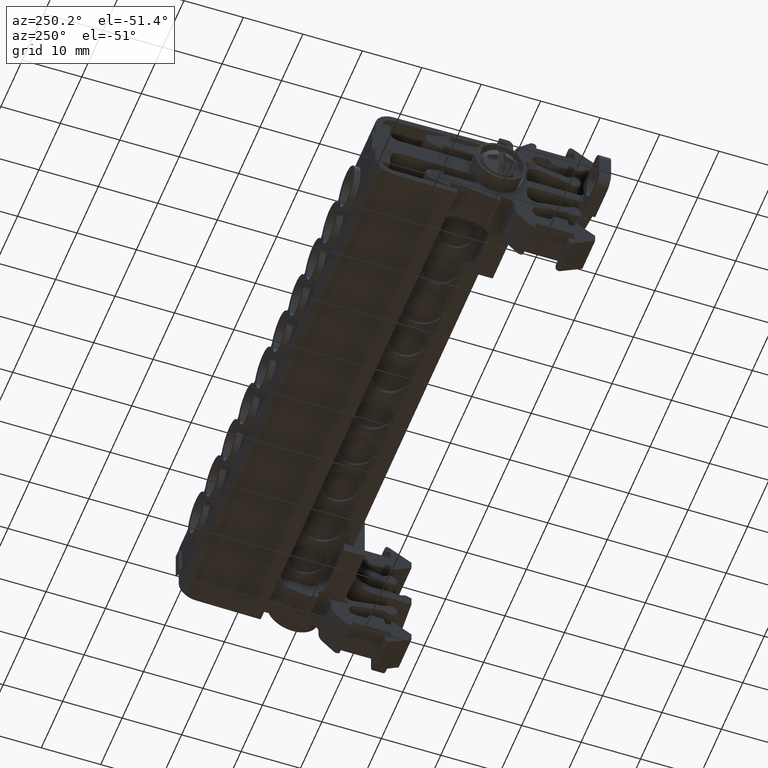
[diagram: clean part render]
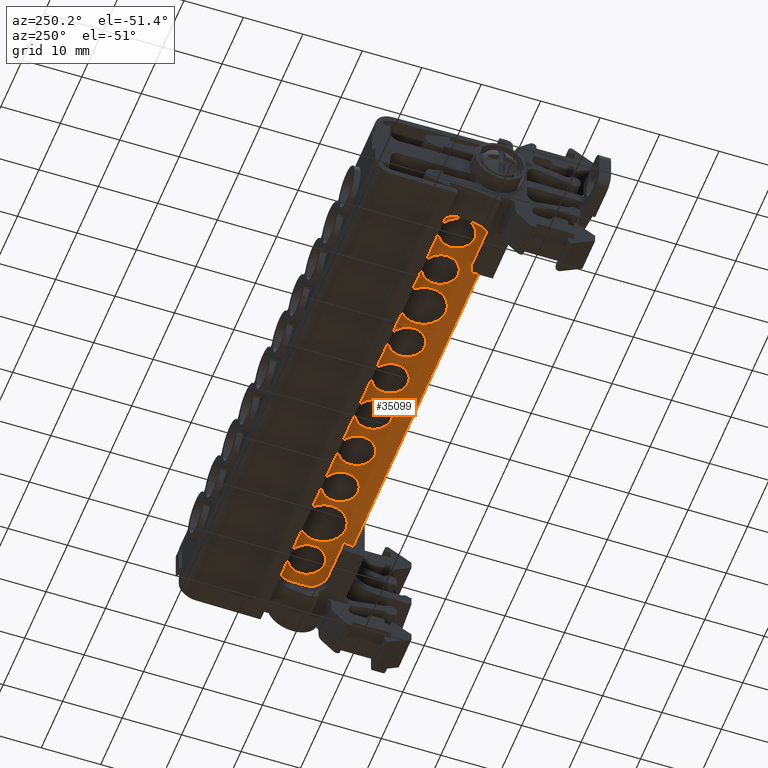
[diagram: same view with one face highlighted and labeled with its STEP entity id]
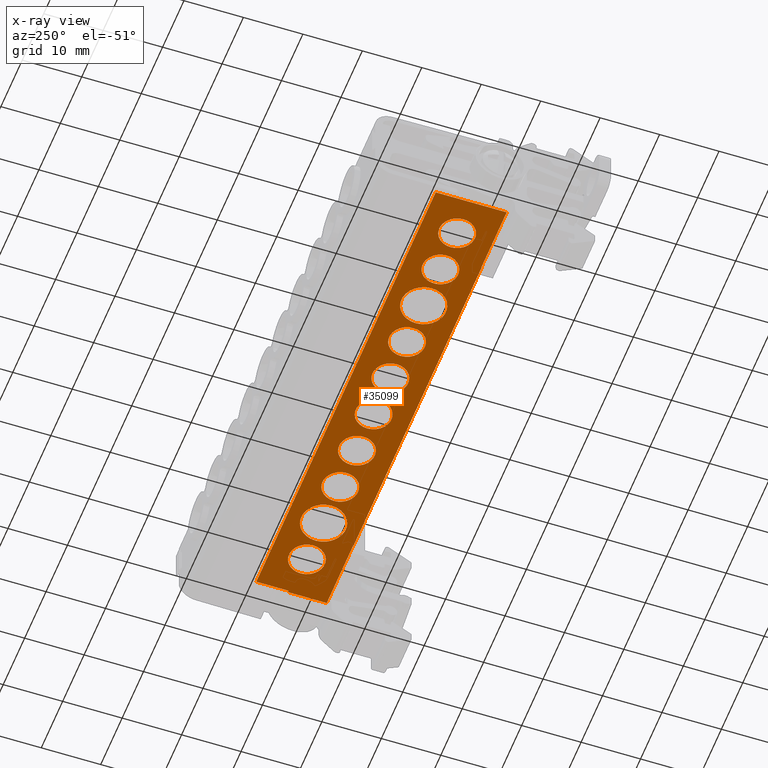
[diagram: x-ray of the same camera — body ghosted, the highlighted face saturated]
A machine part, auxiliary view. The second image highlights one B-rep face of the part: STEP entity #35099.
The next image is the same camera in x-ray: the body ghosted, the highlighted face saturated — about 0% of this face is hidden behind the body in this view.
In plain terms, the highlighted planar face has unit normal (0, 0, -1).
Its self-contained STEP definition (entity closure, byte-faithful):
#668 = CARTESIAN_POINT ( 'NONE',  ( -20.85539649368645200, -39.46391012921720400, 92.75723811290791300 ) ) ;
#693 = CARTESIAN_POINT ( 'NONE',  ( -13.80539649368645900, -39.46391012921720400, 92.75723811290791300 ) ) ;
#695 = CARTESIAN_POINT ( 'NONE',  ( -28.65539649368645300, -39.46391012921721100, 92.75723811290791300 ) ) ;
#700 = CARTESIAN_POINT ( 'NONE',  ( -53.10539649368644900, -39.46391012921720400, 92.75723811290791300 ) ) ;
#703 = CARTESIAN_POINT ( 'NONE',  ( -22.65539649368644600, -39.46391012921721100, 92.75723811290791300 ) ) ;
#708 = CARTESIAN_POINT ( 'NONE',  ( -46.05539649368644500, -39.46391012921721100, 92.75723811290791300 ) ) ;
#717 = CARTESIAN_POINT ( 'NONE',  ( -52.05539649368645200, -39.46391012921721100, 92.75723811290791300 ) ) ;
#726 = CARTESIAN_POINT ( 'NONE',  ( -36.45539649368645000, -39.46391012921721100, 92.75723811290791300 ) ) ;
#727 = CARTESIAN_POINT ( 'NONE',  ( -6.305396493686445500, -39.46391012921720400, 92.75723811290791300 ) ) ;
#730 = CARTESIAN_POINT ( 'NONE',  ( -5.255396493686452800, -39.46391012921720400, 92.75723811290791300 ) ) ;
#735 = CARTESIAN_POINT ( 'NONE',  ( -14.85539649368644700, -39.46391012921720400, 92.75723811290791300 ) ) ;
#736 = CARTESIAN_POINT ( 'NONE',  ( -38.25539649368644000, -39.46391012921721100, 92.75723811290791300 ) ) ;
#740 = CARTESIAN_POINT ( 'NONE',  ( -69.45539649368645000, -39.46391012921720400, 92.75723811290791300 ) ) ;
#744 = CARTESIAN_POINT ( 'NONE',  ( -75.45539649368646500, -39.46391012921720400, 92.75723811290791300 ) ) ;
#749 = CARTESIAN_POINT ( 'NONE',  ( 0.7446035063135504300, -39.46391012921720400, 92.75723811290791300 ) ) ;
#760 = CARTESIAN_POINT ( 'NONE',  ( -30.45539649368645000, -39.46391012921721100, 92.75723811290791300 ) ) ;
#767 = CARTESIAN_POINT ( 'NONE',  ( -60.60539649368644200, -39.46391012921720400, 92.75723811290791300 ) ) ;
#771 = CARTESIAN_POINT ( 'NONE',  ( -44.25539649368644700, -39.46391012921721100, 92.75723811290791300 ) ) ;
#779 = CARTESIAN_POINT ( 'NONE',  ( -67.65539649368642500, -39.46391012921720400, 92.75723811290791300 ) ) ;
#802 = CARTESIAN_POINT ( 'NONE',  ( -61.65539649368644600, -39.46391012921720400, 92.75723811290791300 ) ) ;
#1895 = CARTESIAN_POINT ( 'NONE',  ( -10.05539649368645200, -39.46391012921720400, 92.75723811290791300 ) ) ;
#1908 = DIRECTION ( 'NONE',  ( 0.0000000000000000000, 0.0000000000000000000, 1.000000000000000000 ) ) ;
#1910 = DIRECTION ( 'NONE',  ( 0.0000000000000000000, 0.0000000000000000000, 1.000000000000000000 ) ) ;
#1912 = DIRECTION ( 'NONE',  ( 0.0000000000000000000, 0.0000000000000000000, 1.000000000000000000 ) ) ;
#1920 = CARTESIAN_POINT ( 'NONE',  ( -2.255396493686451000, -39.46391012921720400, 92.75723811290791300 ) ) ;
#1921 = DIRECTION ( 'NONE',  ( 1.000000000000000000, 0.0000000000000000000, 0.0000000000000000000 ) ) ;
#1923 = DIRECTION ( 'NONE',  ( 1.000000000000000000, 0.0000000000000000000, 0.0000000000000000000 ) ) ;
#1928 = CARTESIAN_POINT ( 'NONE',  ( -64.65539649368643900, -39.46391012921720400, 92.75723811290791300 ) ) ;
#1929 = DIRECTION ( 'NONE',  ( 1.000000000000000000, 0.0000000000000000000, 0.0000000000000000000 ) ) ;
#1930 = CARTESIAN_POINT ( 'NONE',  ( -56.85539649368644900, -39.46391012921720400, 92.75723811290791300 ) ) ;
#1931 = DIRECTION ( 'NONE',  ( 0.0000000000000000000, 0.0000000000000000000, 1.000000000000000000 ) ) ;
#1932 = DIRECTION ( 'NONE',  ( 1.000000000000000000, 0.0000000000000000000, 0.0000000000000000000 ) ) ;
#1973 = CARTESIAN_POINT ( 'NONE',  ( -17.85539649368644900, -39.46391012921720400, 92.75723811290791300 ) ) ;
#1978 = DIRECTION ( 'NONE',  ( 0.0000000000000000000, 0.0000000000000000000, 1.000000000000000000 ) ) ;
#1979 = DIRECTION ( 'NONE',  ( 1.000000000000000000, 0.0000000000000000000, 0.0000000000000000000 ) ) ;
#2600 = AXIS2_PLACEMENT_3D ( 'NONE', #27583, #27584, #27592 ) ;
#2611 = CIRCLE ( 'NONE', #2600, 3.000000000000002700 ) ;
#2648 = AXIS2_PLACEMENT_3D ( 'NONE', #26022, #25973, #25997 ) ;
#2653 = CIRCLE ( 'NONE', #2648, 3.000000000000002700 ) ;
#6945 = VERTEX_POINT ( 'NONE', #668 ) ;
#7056 = VERTEX_POINT ( 'NONE', #708 ) ;
#7069 = VERTEX_POINT ( 'NONE', #695 ) ;
#7073 = VERTEX_POINT ( 'NONE', #693 ) ;
#7074 = VERTEX_POINT ( 'NONE', #700 ) ;
#7079 = VERTEX_POINT ( 'NONE', #749 ) ;
#7083 = VERTEX_POINT ( 'NONE', #740 ) ;
#7084 = VERTEX_POINT ( 'NONE', #703 ) ;
#7086 = VERTEX_POINT ( 'NONE', #717 ) ;
#7094 = VERTEX_POINT ( 'NONE', #726 ) ;
#7095 = VERTEX_POINT ( 'NONE', #727 ) ;
#7099 = VERTEX_POINT ( 'NONE', #744 ) ;
#7100 = VERTEX_POINT ( 'NONE', #730 ) ;
#7104 = VERTEX_POINT ( 'NONE', #735 ) ;
#7106 = VERTEX_POINT ( 'NONE', #736 ) ;
#7113 = VERTEX_POINT ( 'NONE', #767 ) ;
#7115 = VERTEX_POINT ( 'NONE', #802 ) ;
#7116 = VERTEX_POINT ( 'NONE', #771 ) ;
#7118 = VERTEX_POINT ( 'NONE', #779 ) ;
#7138 = VERTEX_POINT ( 'NONE', #760 ) ;
#8506 = EDGE_CURVE ( 'NONE', #7073, #7095, #14620, .T. ) ;
#8510 = EDGE_CURVE ( 'NONE', #7100, #7079, #14665, .T. ) ;
#8515 = EDGE_CURVE ( 'NONE', #7118, #7115, #14680, .T. ) ;
#8518 = EDGE_CURVE ( 'NONE', #7113, #7074, #14644, .T. ) ;
#8524 = EDGE_CURVE ( 'NONE', #6945, #7104, #14657, .T. ) ;
#10298 = AXIS2_PLACEMENT_3D ( 'NONE', #11037, #11061, #11083 ) ;
#11037 = CARTESIAN_POINT ( 'NONE',  ( -79.10539649368644200, -33.46391012921720400, 92.75723811290791300 ) ) ;
#11043 = FACE_OUTER_BOUND ( 'NONE', #20290, .T. ) ;
#11046 = FACE_BOUND ( 'NONE', #20275, .T. ) ;
#11058 = FACE_BOUND ( 'NONE', #20280, .T. ) ;
#11059 = PLANE ( 'NONE',  #10298 ) ;
#11060 = FACE_BOUND ( 'NONE', #20276, .T. ) ;
#11061 = DIRECTION ( 'NONE',  ( 0.0000000000000000000, 0.0000000000000000000, -1.000000000000000000 ) ) ;
#11064 = FACE_BOUND ( 'NONE', #20286, .T. ) ;
#11069 = FACE_BOUND ( 'NONE', #20287, .T. ) ;
#11080 = FACE_BOUND ( 'NONE', #20305, .T. ) ;
#11083 = DIRECTION ( 'NONE',  ( -1.000000000000000000, 0.0000000000000000000, -0.0000000000000000000 ) ) ;
#11084 = FACE_BOUND ( 'NONE', #20281, .T. ) ;
#11085 = FACE_BOUND ( 'NONE', #20282, .T. ) ;
#14620 = CIRCLE ( 'NONE', #14656, 3.750000000000006700 ) ;
#14634 = AXIS2_PLACEMENT_3D ( 'NONE', #1920, #1912, #1929 ) ;
#14644 = CIRCLE ( 'NONE', #14667, 3.749999999999996400 ) ;
#14656 = AXIS2_PLACEMENT_3D ( 'NONE', #1895, #1910, #1921 ) ;
#14657 = CIRCLE ( 'NONE', #14685, 3.000000000000000900 ) ;
#14665 = CIRCLE ( 'NONE', #14634, 3.000000000000001300 ) ;
#14666 = AXIS2_PLACEMENT_3D ( 'NONE', #1928, #1908, #1923 ) ;
#14667 = AXIS2_PLACEMENT_3D ( 'NONE', #1930, #1931, #1932 ) ;
#14680 = CIRCLE ( 'NONE', #14666, 2.999999999999995600 ) ;
#14685 = AXIS2_PLACEMENT_3D ( 'NONE', #1973, #1978, #1979 ) ;
#17866 = VECTOR ( 'NONE', #31129, 1000.000000000000000 ) ;
#18016 = AXIS2_PLACEMENT_3D ( 'NONE', #27427, #27362, #27363 ) ;
#18071 = CIRCLE ( 'NONE', #18016, 3.000000000000002700 ) ;
#18086 = VECTOR ( 'NONE', #31321, 1000.000000000000000 ) ;
#18090 = AXIS2_PLACEMENT_3D ( 'NONE', #31363, #31379, #31381 ) ;
#18092 = CIRCLE ( 'NONE', #18094, 3.000000000000000900 ) ;
#18094 = AXIS2_PLACEMENT_3D ( 'NONE', #31370, #31277, #31279 ) ;
#18098 = CIRCLE ( 'NONE', #18126, 3.000000000000002700 ) ;
#18106 = AXIS2_PLACEMENT_3D ( 'NONE', #31361, #31384, #31355 ) ;
#18126 = AXIS2_PLACEMENT_3D ( 'NONE', #31299, #31284, #31375 ) ;
#18128 = CIRCLE ( 'NONE', #18090, 3.000000000000002700 ) ;
#18146 = AXIS2_PLACEMENT_3D ( 'NONE', #31335, #31316, #31359 ) ;
#18152 = CIRCLE ( 'NONE', #18106, 3.000000000000001300 ) ;
#18162 = CIRCLE ( 'NONE', #18146, 3.749999999999996400 ) ;
#18243 = CIRCLE ( 'NONE', #18301, 3.750000000000006700 ) ;
#18252 = VECTOR ( 'NONE', #31461, 1000.000000000000000 ) ;
#18301 = AXIS2_PLACEMENT_3D ( 'NONE', #31463, #31477, #31483 ) ;
#18303 = VECTOR ( 'NONE', #31450, 1000.000000000000000 ) ;
#18309 = VECTOR ( 'NONE', #31421, 1000.000000000000000 ) ;
#18373 = AXIS2_PLACEMENT_3D ( 'NONE', #31618, #31638, #31660 ) ;
#18384 = VECTOR ( 'NONE', #31552, 1000.000000000000000 ) ;
#18418 = AXIS2_PLACEMENT_3D ( 'NONE', #31597, #31574, #31595 ) ;
#18428 = CIRCLE ( 'NONE', #18373, 3.000000000000002700 ) ;
#18474 = CIRCLE ( 'NONE', #18418, 2.999999999999995600 ) ;
#18524 = VECTOR ( 'NONE', #32478, 1000.000000000000000 ) ;
#18569 = CIRCLE ( 'NONE', #18688, 3.000000000000002700 ) ;
#18612 = VECTOR ( 'NONE', #25308, 1000.000000000000000 ) ;
#18688 = AXIS2_PLACEMENT_3D ( 'NONE', #27537, #27507, #27513 ) ;
#18742 = CIRCLE ( 'NONE', #18744, 3.000000000000002700 ) ;
#18744 = AXIS2_PLACEMENT_3D ( 'NONE', #31094, #31159, #31109 ) ;
#18890 = CIRCLE ( 'NONE', #18930, 3.000000000000002700 ) ;
#18930 = AXIS2_PLACEMENT_3D ( 'NONE', #27477, #27480, #27465 ) ;
#18943 = VECTOR ( 'NONE', #31114, 1000.000000000000000 ) ;
#19068 = CIRCLE ( 'NONE', #19104, 3.000000000000002700 ) ;
#19104 = AXIS2_PLACEMENT_3D ( 'NONE', #31199, #31273, #31218 ) ;
#19122 = VECTOR ( 'NONE', #30826, 1000.000000000000000 ) ;
#20274 = EDGE_LOOP ( 'NONE', ( #24412, #24302 ) ) ;
#20275 = EDGE_LOOP ( 'NONE', ( #24303, #24334 ) ) ;
#20276 = EDGE_LOOP ( 'NONE', ( #24357, #24329 ) ) ;
#20278 = EDGE_LOOP ( 'NONE', ( #24378, #24353 ) ) ;
#20280 = EDGE_LOOP ( 'NONE', ( #24361, #24344 ) ) ;
#20281 = EDGE_LOOP ( 'NONE', ( #24310, #24386 ) ) ;
#20282 = EDGE_LOOP ( 'NONE', ( #24337, #24347 ) ) ;
#20286 = EDGE_LOOP ( 'NONE', ( #24352, #24358 ) ) ;
#20287 = EDGE_LOOP ( 'NONE', ( #24333, #24339 ) ) ;
#20290 = EDGE_LOOP ( 'NONE', ( #24335, #24364, #24322, #24363, #24343, #24354, #24346, #24309, #24410, #24328 ) ) ;
#20305 = EDGE_LOOP ( 'NONE', ( #24312, #24366 ) ) ;
#21443 = EDGE_CURVE ( 'NONE', #29226, #29291, #25316, .T. ) ;
#21884 = EDGE_CURVE ( 'NONE', #29638, #29706, #30871, .T. ) ;
#21923 = EDGE_CURVE ( 'NONE', #29634, #29703, #31030, .T. ) ;
#21931 = EDGE_CURVE ( 'NONE', #7084, #7069, #18742, .T. ) ;
#21933 = EDGE_CURVE ( 'NONE', #29662, #29226, #31144, .T. ) ;
#21935 = EDGE_CURVE ( 'NONE', #7106, #7116, #19068, .T. ) ;
#21950 = EDGE_CURVE ( 'NONE', #29673, #29662, #31373, .T. ) ;
#21951 = EDGE_CURVE ( 'NONE', #7138, #7094, #18098, .T. ) ;
#21952 = EDGE_CURVE ( 'NONE', #7074, #7113, #18162, .T. ) ;
#21953 = EDGE_CURVE ( 'NONE', #7083, #7099, #18128, .T. ) ;
#21954 = EDGE_CURVE ( 'NONE', #7079, #7100, #18152, .T. ) ;
#21955 = EDGE_CURVE ( 'NONE', #7104, #6945, #18092, .T. ) ;
#21976 = EDGE_CURVE ( 'NONE', #29721, #29673, #31416, .T. ) ;
#21977 = EDGE_CURVE ( 'NONE', #7095, #7073, #18243, .T. ) ;
#21986 = EDGE_CURVE ( 'NONE', #29737, #29703, #31447, .T. ) ;
#21989 = EDGE_CURVE ( 'NONE', #29634, #29706, #31444, .T. ) ;
#22013 = EDGE_CURVE ( 'NONE', #29638, #29721, #31535, .T. ) ;
#22022 = EDGE_CURVE ( 'NONE', #7115, #7118, #18474, .T. ) ;
#22037 = EDGE_CURVE ( 'NONE', #7056, #7086, #18428, .T. ) ;
#22046 = EDGE_CURVE ( 'NONE', #29291, #29737, #32490, .T. ) ;
#24302 = ORIENTED_EDGE ( 'NONE', *, *, #8506, .T. ) ;
#24303 = ORIENTED_EDGE ( 'NONE', *, *, #21952, .T. ) ;
#24309 = ORIENTED_EDGE ( 'NONE', *, *, #21884, .F. ) ;
#24310 = ORIENTED_EDGE ( 'NONE', *, *, #22022, .T. ) ;
#24312 = ORIENTED_EDGE ( 'NONE', *, *, #21931, .T. ) ;
#24322 = ORIENTED_EDGE ( 'NONE', *, *, #21443, .T. ) ;
#24328 = ORIENTED_EDGE ( 'NONE', *, *, #21976, .T. ) ;
#24329 = ORIENTED_EDGE ( 'NONE', *, *, #8510, .T. ) ;
#24333 = ORIENTED_EDGE ( 'NONE', *, *, #21951, .T. ) ;
#24334 = ORIENTED_EDGE ( 'NONE', *, *, #8518, .T. ) ;
#24335 = ORIENTED_EDGE ( 'NONE', *, *, #21950, .T. ) ;
#24337 = ORIENTED_EDGE ( 'NONE', *, *, #21935, .T. ) ;
#24339 = ORIENTED_EDGE ( 'NONE', *, *, #27442, .T. ) ;
#24343 = ORIENTED_EDGE ( 'NONE', *, *, #21986, .T. ) ;
#24344 = ORIENTED_EDGE ( 'NONE', *, *, #27422, .T. ) ;
#24346 = ORIENTED_EDGE ( 'NONE', *, *, #21989, .T. ) ;
#24347 = ORIENTED_EDGE ( 'NONE', *, *, #27469, .T. ) ;
#24352 = ORIENTED_EDGE ( 'NONE', *, *, #22037, .T. ) ;
#24353 = ORIENTED_EDGE ( 'NONE', *, *, #8524, .T. ) ;
#24354 = ORIENTED_EDGE ( 'NONE', *, *, #21923, .F. ) ;
#24357 = ORIENTED_EDGE ( 'NONE', *, *, #21954, .T. ) ;
#24358 = ORIENTED_EDGE ( 'NONE', *, *, #27389, .T. ) ;
#24361 = ORIENTED_EDGE ( 'NONE', *, *, #21953, .T. ) ;
#24363 = ORIENTED_EDGE ( 'NONE', *, *, #22046, .T. ) ;
#24364 = ORIENTED_EDGE ( 'NONE', *, *, #21933, .T. ) ;
#24366 = ORIENTED_EDGE ( 'NONE', *, *, #27749, .T. ) ;
#24378 = ORIENTED_EDGE ( 'NONE', *, *, #21955, .T. ) ;
#24386 = ORIENTED_EDGE ( 'NONE', *, *, #8515, .T. ) ;
#24410 = ORIENTED_EDGE ( 'NONE', *, *, #22013, .T. ) ;
#24412 = ORIENTED_EDGE ( 'NONE', *, *, #21977, .T. ) ;
#25275 = CARTESIAN_POINT ( 'NONE',  ( 8.524603506313667400, -38.84901504753033000, 92.75723811290791300 ) ) ;
#25308 = DIRECTION ( 'NONE',  ( 1.000000000000000000, 1.101172293446146000E-014, 2.403906012228000300E-015 ) ) ;
#25316 = LINE ( 'NONE', #25275, #18612 ) ;
#25973 = DIRECTION ( 'NONE',  ( 0.0000000000000000000, 0.0000000000000000000, 1.000000000000000000 ) ) ;
#25997 = DIRECTION ( 'NONE',  ( 1.000000000000000000, 0.0000000000000000000, 0.0000000000000000000 ) ) ;
#26022 = CARTESIAN_POINT ( 'NONE',  ( -25.65539649368645000, -39.46391012921721100, 92.75723811290791300 ) ) ;
#26078 = CARTESIAN_POINT ( 'NONE',  ( 4.704603506313549800, -38.84901504753037200, 92.75723811290789900 ) ) ;
#26202 = CARTESIAN_POINT ( 'NONE',  ( 4.994603506313846500, -38.84901488081563100, 92.75723811290789900 ) ) ;
#26461 = CARTESIAN_POINT ( 'NONE',  ( -7.475396493685803300, -45.46391012921720400, 92.75723811290791300 ) ) ;
#26540 = CARTESIAN_POINT ( 'NONE',  ( -67.27539649368668500, -45.46391012921720400, 92.75723811290791300 ) ) ;
#26547 = CARTESIAN_POINT ( 'NONE',  ( 4.994603506313880300, -45.40958989761767800, 92.75723811290791300 ) ) ;
#26568 = CARTESIAN_POINT ( 'NONE',  ( 4.704603506313548100, -33.46391012921720400, 92.75723811290791300 ) ) ;
#26570 = CARTESIAN_POINT ( 'NONE',  ( -7.475396493685853900, -45.40958989761773500, 92.75723811290791300 ) ) ;
#26610 = CARTESIAN_POINT ( 'NONE',  ( -79.10539649368644200, -45.40958989761857400, 92.75723811290791300 ) ) ;
#26627 = CARTESIAN_POINT ( 'NONE',  ( -79.10539649368644200, -33.46391012921720400, 92.75723811290791300 ) ) ;
#26652 = CARTESIAN_POINT ( 'NONE',  ( -67.27539649368668500, -45.40958989761848800, 92.75723811290791300 ) ) ;
#27362 = DIRECTION ( 'NONE',  ( 0.0000000000000000000, 0.0000000000000000000, 1.000000000000000000 ) ) ;
#27363 = DIRECTION ( 'NONE',  ( 1.000000000000000000, 0.0000000000000000000, 0.0000000000000000000 ) ) ;
#27389 = EDGE_CURVE ( 'NONE', #7086, #7056, #18071, .T. ) ;
#27422 = EDGE_CURVE ( 'NONE', #7099, #7083, #18890, .T. ) ;
#27427 = CARTESIAN_POINT ( 'NONE',  ( -49.05539649368644500, -39.46391012921721100, 92.75723811290791300 ) ) ;
#27442 = EDGE_CURVE ( 'NONE', #7094, #7138, #18569, .T. ) ;
#27465 = DIRECTION ( 'NONE',  ( 1.000000000000000000, 0.0000000000000000000, 0.0000000000000000000 ) ) ;
#27469 = EDGE_CURVE ( 'NONE', #7116, #7106, #2611, .T. ) ;
#27477 = CARTESIAN_POINT ( 'NONE',  ( -72.45539649368646500, -39.46391012921720400, 92.75723811290791300 ) ) ;
#27480 = DIRECTION ( 'NONE',  ( 0.0000000000000000000, 0.0000000000000000000, 1.000000000000000000 ) ) ;
#27507 = DIRECTION ( 'NONE',  ( 0.0000000000000000000, 0.0000000000000000000, 1.000000000000000000 ) ) ;
#27513 = DIRECTION ( 'NONE',  ( 1.000000000000000000, 0.0000000000000000000, 0.0000000000000000000 ) ) ;
#27537 = CARTESIAN_POINT ( 'NONE',  ( -33.45539649368645000, -39.46391012921721100, 92.75723811290791300 ) ) ;
#27583 = CARTESIAN_POINT ( 'NONE',  ( -41.25539649368644700, -39.46391012921721100, 92.75723811290791300 ) ) ;
#27584 = DIRECTION ( 'NONE',  ( 0.0000000000000000000, 0.0000000000000000000, 1.000000000000000000 ) ) ;
#27592 = DIRECTION ( 'NONE',  ( 1.000000000000000000, 0.0000000000000000000, 0.0000000000000000000 ) ) ;
#27749 = EDGE_CURVE ( 'NONE', #7069, #7084, #2653, .T. ) ;
#29226 = VERTEX_POINT ( 'NONE', #26078 ) ;
#29291 = VERTEX_POINT ( 'NONE', #26202 ) ;
#29634 = VERTEX_POINT ( 'NONE', #26461 ) ;
#29638 = VERTEX_POINT ( 'NONE', #26652 ) ;
#29662 = VERTEX_POINT ( 'NONE', #26568 ) ;
#29673 = VERTEX_POINT ( 'NONE', #26627 ) ;
#29703 = VERTEX_POINT ( 'NONE', #26570 ) ;
#29706 = VERTEX_POINT ( 'NONE', #26540 ) ;
#29721 = VERTEX_POINT ( 'NONE', #26610 ) ;
#29737 = VERTEX_POINT ( 'NONE', #26547 ) ;
#30674 = FACE_BOUND ( 'NONE', #20274, .T. ) ;
#30826 = DIRECTION ( 'NONE',  ( 1.123605221868004000E-014, -1.000000000000000000, -0.0000000000000000000 ) ) ;
#30871 = LINE ( 'NONE', #30888, #19122 ) ;
#30888 = CARTESIAN_POINT ( 'NONE',  ( -67.27539649368668500, -45.09798989761760200, 92.75723811290791300 ) ) ;
#31030 = LINE ( 'NONE', #31035, #17866 ) ;
#31035 = CARTESIAN_POINT ( 'NONE',  ( -7.475396493685807700, -45.09798989761693400, 92.75723811290791300 ) ) ;
#31094 = CARTESIAN_POINT ( 'NONE',  ( -25.65539649368645000, -39.46391012921721100, 92.75723811290791300 ) ) ;
#31109 = DIRECTION ( 'NONE',  ( 1.000000000000000000, 0.0000000000000000000, 0.0000000000000000000 ) ) ;
#31114 = DIRECTION ( 'NONE',  ( -0.0000000000000000000, -1.000000000000000000, -0.0000000000000000000 ) ) ;
#31129 = DIRECTION ( 'NONE',  ( -1.100161628464488100E-014, 1.000000000000000000, -0.0000000000000000000 ) ) ;
#31139 = CARTESIAN_POINT ( 'NONE',  ( 4.704603506313548100, -33.46391012921720400, 92.75723811290791300 ) ) ;
#31144 = LINE ( 'NONE', #31139, #18943 ) ;
#31159 = DIRECTION ( 'NONE',  ( 0.0000000000000000000, 0.0000000000000000000, 1.000000000000000000 ) ) ;
#31199 = CARTESIAN_POINT ( 'NONE',  ( -41.25539649368644700, -39.46391012921721100, 92.75723811290791300 ) ) ;
#31218 = DIRECTION ( 'NONE',  ( 1.000000000000000000, 0.0000000000000000000, 0.0000000000000000000 ) ) ;
#31273 = DIRECTION ( 'NONE',  ( 0.0000000000000000000, 0.0000000000000000000, 1.000000000000000000 ) ) ;
#31277 = DIRECTION ( 'NONE',  ( 0.0000000000000000000, 0.0000000000000000000, 1.000000000000000000 ) ) ;
#31279 = DIRECTION ( 'NONE',  ( 1.000000000000000000, 0.0000000000000000000, 0.0000000000000000000 ) ) ;
#31284 = DIRECTION ( 'NONE',  ( 0.0000000000000000000, 0.0000000000000000000, 1.000000000000000000 ) ) ;
#31299 = CARTESIAN_POINT ( 'NONE',  ( -33.45539649368645000, -39.46391012921721100, 92.75723811290791300 ) ) ;
#31316 = DIRECTION ( 'NONE',  ( 0.0000000000000000000, 0.0000000000000000000, 1.000000000000000000 ) ) ;
#31321 = DIRECTION ( 'NONE',  ( 1.000000000000000000, -0.0000000000000000000, 0.0000000000000000000 ) ) ;
#31335 = CARTESIAN_POINT ( 'NONE',  ( -56.85539649368644900, -39.46391012921720400, 92.75723811290791300 ) ) ;
#31355 = DIRECTION ( 'NONE',  ( 1.000000000000000000, 0.0000000000000000000, 0.0000000000000000000 ) ) ;
#31359 = DIRECTION ( 'NONE',  ( 1.000000000000000000, 0.0000000000000000000, 0.0000000000000000000 ) ) ;
#31361 = CARTESIAN_POINT ( 'NONE',  ( -2.255396493686451000, -39.46391012921720400, 92.75723811290791300 ) ) ;
#31363 = CARTESIAN_POINT ( 'NONE',  ( -72.45539649368646500, -39.46391012921720400, 92.75723811290791300 ) ) ;
#31370 = CARTESIAN_POINT ( 'NONE',  ( -17.85539649368644900, -39.46391012921720400, 92.75723811290791300 ) ) ;
#31373 = LINE ( 'NONE', #31377, #18086 ) ;
#31375 = DIRECTION ( 'NONE',  ( 1.000000000000000000, 0.0000000000000000000, 0.0000000000000000000 ) ) ;
#31377 = CARTESIAN_POINT ( 'NONE',  ( -79.10539649368644200, -33.46391012921720400, 92.75723811290791300 ) ) ;
#31379 = DIRECTION ( 'NONE',  ( 0.0000000000000000000, 0.0000000000000000000, 1.000000000000000000 ) ) ;
#31381 = DIRECTION ( 'NONE',  ( 1.000000000000000000, 0.0000000000000000000, 0.0000000000000000000 ) ) ;
#31384 = DIRECTION ( 'NONE',  ( 0.0000000000000000000, 0.0000000000000000000, 1.000000000000000000 ) ) ;
#31416 = LINE ( 'NONE', #31417, #18309 ) ;
#31417 = CARTESIAN_POINT ( 'NONE',  ( -79.10539649368644200, -33.46391012921720400, 92.75723811290791300 ) ) ;
#31421 = DIRECTION ( 'NONE',  ( 0.0000000000000000000, 1.000000000000000000, 0.0000000000000000000 ) ) ;
#31444 = LINE ( 'NONE', #31472, #18252 ) ;
#31447 = LINE ( 'NONE', #31448, #18303 ) ;
#31448 = CARTESIAN_POINT ( 'NONE',  ( -79.10539649368644200, -45.40958989761767800, 92.75723811290791300 ) ) ;
#31450 = DIRECTION ( 'NONE',  ( -1.000000000000000000, 0.0000000000000000000, -0.0000000000000000000 ) ) ;
#31461 = DIRECTION ( 'NONE',  ( -1.000000000000000000, 0.0000000000000000000, -0.0000000000000000000 ) ) ;
#31463 = CARTESIAN_POINT ( 'NONE',  ( -10.05539649368645200, -39.46391012921720400, 92.75723811290791300 ) ) ;
#31472 = CARTESIAN_POINT ( 'NONE',  ( -79.10539649368644200, -45.46391012921720400, 92.75723811290791300 ) ) ;
#31477 = DIRECTION ( 'NONE',  ( 0.0000000000000000000, 0.0000000000000000000, 1.000000000000000000 ) ) ;
#31483 = DIRECTION ( 'NONE',  ( 1.000000000000000000, 0.0000000000000000000, 0.0000000000000000000 ) ) ;
#31535 = LINE ( 'NONE', #31546, #18384 ) ;
#31546 = CARTESIAN_POINT ( 'NONE',  ( -79.10539649368644200, -45.40958989761849600, 92.75723811290791300 ) ) ;
#31552 = DIRECTION ( 'NONE',  ( -1.000000000000000000, 0.0000000000000000000, -0.0000000000000000000 ) ) ;
#31574 = DIRECTION ( 'NONE',  ( 0.0000000000000000000, 0.0000000000000000000, 1.000000000000000000 ) ) ;
#31595 = DIRECTION ( 'NONE',  ( 1.000000000000000000, 0.0000000000000000000, 0.0000000000000000000 ) ) ;
#31597 = CARTESIAN_POINT ( 'NONE',  ( -64.65539649368643900, -39.46391012921720400, 92.75723811290791300 ) ) ;
#31618 = CARTESIAN_POINT ( 'NONE',  ( -49.05539649368644500, -39.46391012921721100, 92.75723811290791300 ) ) ;
#31638 = DIRECTION ( 'NONE',  ( 0.0000000000000000000, 0.0000000000000000000, 1.000000000000000000 ) ) ;
#31660 = DIRECTION ( 'NONE',  ( 1.000000000000000000, 0.0000000000000000000, 0.0000000000000000000 ) ) ;
#32478 = DIRECTION ( 'NONE',  ( -0.0000000000000000000, -1.000000000000000000, -0.0000000000000000000 ) ) ;
#32490 = LINE ( 'NONE', #32505, #18524 ) ;
#32505 = CARTESIAN_POINT ( 'NONE',  ( 4.994603506313866100, -33.46391012921720400, 92.75723811290791300 ) ) ;
#33954 = FACE_BOUND ( 'NONE', #20278, .T. ) ;
#35099 = ADVANCED_FACE ( 'NONE', ( #33954, #30674, #11060, #11046, #11084, #11058, #11064, #11085, #11069, #11080, #11043 ), #11059, .T. ) ;